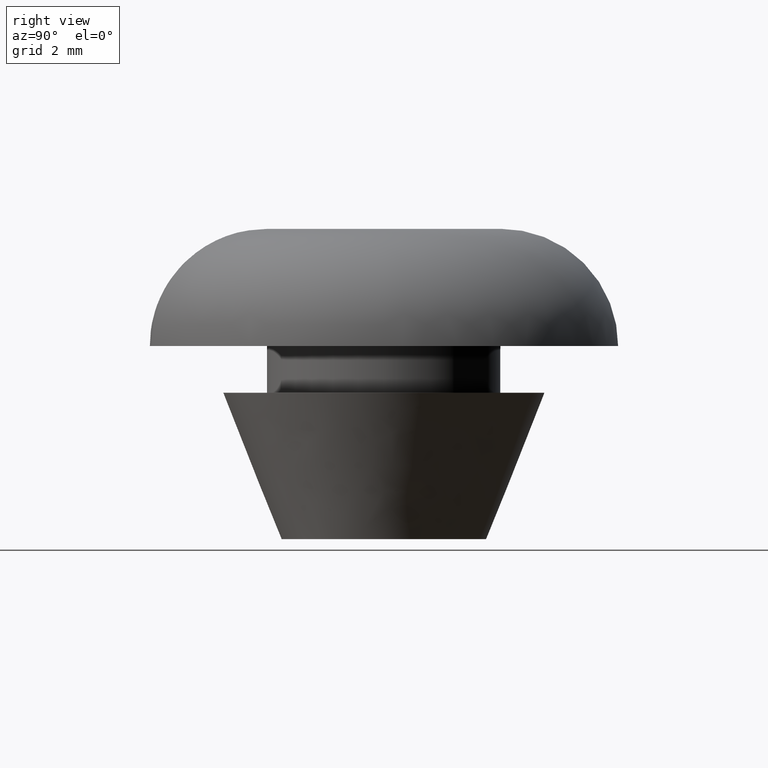
[diagram: clean part render]
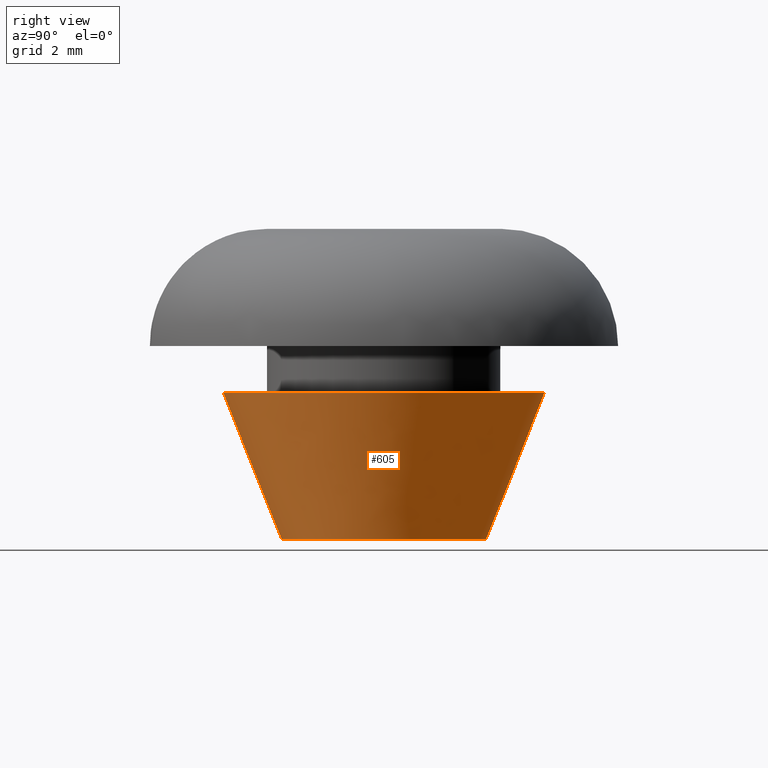
[diagram: same view with one face highlighted and labeled with its STEP entity id]
A machine part, right view. The second image highlights one B-rep face of the part: STEP entity #605.
In plain terms, the highlighted face is a freeform B-spline surface patch.
Its self-contained STEP definition (entity closure, byte-faithful):
#440=CARTESIAN_POINT('',(-0.274600980489155,3.489208997300468,-0.000005312372791));
#441=VERTEX_POINT('',#440);
#455=CARTESIAN_POINT('',(0.274600980489155,-3.489208997300468,-0.000005312372791));
#456=VERTEX_POINT('',#455);
#472=CARTESIAN_POINT('',(0.431523188758528,-5.483044809921816,4.999998329556744));
#473=VERTEX_POINT('',#472);
#474=CARTESIAN_POINT('',(0.274600980489155,-3.489208997300468,-0.000005312372791));
#475=CARTESIAN_POINT('',(0.431523188758528,-5.483044809921816,4.999998329556744));
#476=QUASI_UNIFORM_CURVE('',1,(#474,#475),.UNSPECIFIED.,.F.,.U.);
#477=EDGE_CURVE('',#456,#473,#476,.T.);
#496=CARTESIAN_POINT('',(-0.431523188758529,5.483044809921818,4.999998329556744));
#497=VERTEX_POINT('',#496);
#511=CARTESIAN_POINT('',(-0.274600980489155,3.489208997300468,-0.000005312372791));
#512=CARTESIAN_POINT('',(-0.431523188758529,5.483044809921818,4.999998329556744));
#513=QUASI_UNIFORM_CURVE('',1,(#511,#512),.UNSPECIFIED.,.F.,.U.);
#514=EDGE_CURVE('',#441,#497,#513,.T.);
#519=CARTESIAN_POINT('',(0.222321621183587,-3.443170993714580,-0.125000000000000));
#520=CARTESIAN_POINT('',(0.246432124522104,-3.441273455949439,-0.125000000000000));
#521=CARTESIAN_POINT('',(3.710048681640357,-3.168680921118223,-0.125000000000000));
#522=CARTESIAN_POINT('',(3.439364801379290,0.270683880261067,-0.125000000000000));
#523=CARTESIAN_POINT('',(3.168680921118223,3.710048681640357,-0.125000000000000));
#524=CARTESIAN_POINT('',(-0.294932292382487,3.437456409957549,-0.125000000000000));
#525=CARTESIAN_POINT('',(-0.319039490993339,3.435559132280112,-0.125000000000000));
#526=CARTESIAN_POINT('',(0.357728376694316,-5.540261733002340,5.128125000000000));
#527=CARTESIAN_POINT('',(0.396523574276328,-5.537208484736038,5.128124999999999));
#528=CARTESIAN_POINT('',(5.969683404045228,-5.098591293726822,5.128125000000001));
#529=CARTESIAN_POINT('',(5.534137348886025,0.435546055159203,5.128125000000001));
#530=CARTESIAN_POINT('',(5.098591293726822,5.969683404045228,5.128125000000001));
#531=CARTESIAN_POINT('',(-0.474563155967617,5.531066636457058,5.128125000000003));
#532=CARTESIAN_POINT('',(-0.513353036051238,5.528013806686950,5.128124999999999));
#540=(BOUNDED_SURFACE()B_SPLINE_SURFACE(2,1,((#519,#526),(#520,#527),(#521,#528),(#522,#529),(#523,#530),(#524,#531),(#525,#532)),.UNSPECIFIED.,.F.,.F.,.U.)B_SPLINE_SURFACE_WITH_KNOTS((3,1,2,1,3),(2,2),(0.0,0.091986763705193,9.289598916199767,18.487211068694339,18.579185112933470),(0.0,5.657865924875689),.UNSPECIFIED.)GEOMETRIC_REPRESENTATION_ITEM()RATIONAL_B_SPLINE_SURFACE(((1.005858542165760,1.005858542165760),(1.002929271082880,1.002929271082880),(0.707106781186548,0.707106781186548),(1.0,1.0),(0.707106781186548,0.707106781186548),(1.002928866038038,1.002928866038038),(1.005857732076077,1.005857732076077)))REPRESENTATION_ITEM('')SURFACE());
#541=CARTESIAN_POINT('',(3.500000000000000,0.0,0.0));
#542=VERTEX_POINT('',#541);
#543=CARTESIAN_POINT('',(-0.274600980489155,3.489208997300468,-0.000005312372791));
#544=CARTESIAN_POINT('',(-0.137512353718484,3.499997920065322,-0.000005215903538));
#545=CARTESIAN_POINT('',(0.000000160415872,3.499997961680607,-0.000005111543859));
#546=CARTESIAN_POINT('',(3.500000077056623,3.499999020882365,-0.000002455357463));
#547=CARTESIAN_POINT('',(3.500000000000000,0.0,0.0));
#555=(BOUNDED_CURVE()B_SPLINE_CURVE(2,(#543,#544,#545,#546,#547),.UNSPECIFIED.,.F.,.U.)B_SPLINE_CURVE_WITH_KNOTS((3,2,3),(0.236331580075702,0.250000000000000,0.500000000000000),.UNSPECIFIED.)CURVE()GEOMETRIC_REPRESENTATION_ITEM()RATIONAL_B_SPLINE_CURVE((0.969723939348634,0.983986449969114,1.0,0.707106781186547,1.0))REPRESENTATION_ITEM(''));
#556=EDGE_CURVE('',#441,#542,#555,.T.);
#557=ORIENTED_EDGE('',*,*,#556,.F.);
#558=ORIENTED_EDGE('',*,*,#514,.T.);
#559=CARTESIAN_POINT('',(5.500000000000000,0.0,5.0));
#560=VERTEX_POINT('',#559);
#561=CARTESIAN_POINT('',(-0.431523188758529,5.483044809921819,4.999998329556744));
#562=CARTESIAN_POINT('',(-0.216094640267148,5.499999345978612,4.999998359891378));
#563=CARTESIAN_POINT('',(0.000000050442510,5.499999359064479,4.999998392707188));
#564=CARTESIAN_POINT('',(5.500000024230313,5.499999692123400,4.999999227928816));
#565=CARTESIAN_POINT('',(5.500000000000000,0.0,5.0));
#573=(BOUNDED_CURVE()B_SPLINE_CURVE(2,(#561,#562,#563,#564,#565),.UNSPECIFIED.,.F.,.U.)B_SPLINE_CURVE_WITH_KNOTS((3,2,3),(0.236331356449855,0.250000000000000,0.500000000000000),.UNSPECIFIED.)CURVE()GEOMETRIC_REPRESENTATION_ITEM()RATIONAL_B_SPLINE_CURVE((0.969723472657849,0.983986187975137,1.0,0.707106781186548,1.0))REPRESENTATION_ITEM(''));
#574=EDGE_CURVE('',#497,#560,#573,.T.);
#575=ORIENTED_EDGE('',*,*,#574,.T.);
#576=CARTESIAN_POINT('',(5.500000000000000,0.0,5.0));
#577=CARTESIAN_POINT('',(5.499999973787802,-5.084149031616582,4.999999164778372));
#578=CARTESIAN_POINT('',(0.431523188758528,-5.483044809921816,4.999998329556744));
#586=(BOUNDED_CURVE()B_SPLINE_CURVE(2,(#576,#577,#578),.UNSPECIFIED.,.F.,.U.)B_SPLINE_CURVE_WITH_KNOTS((3,3),(0.500000000000000,0.736331356449855),.UNSPECIFIED.)CURVE()GEOMETRIC_REPRESENTATION_ITEM()RATIONAL_B_SPLINE_CURVE((1.0,0.723120593211411,0.969723472657849))REPRESENTATION_ITEM(''));
#587=EDGE_CURVE('',#560,#473,#586,.T.);
#588=ORIENTED_EDGE('',*,*,#587,.T.);
#589=ORIENTED_EDGE('',*,*,#477,.F.);
#590=CARTESIAN_POINT('',(3.500000000000000,0.0,0.0));
#591=CARTESIAN_POINT('',(3.499999916640751,-3.235370951957147,-0.000002656186396));
#592=CARTESIAN_POINT('',(0.274600980489156,-3.489208997300468,-0.000005312372791));
#600=(BOUNDED_CURVE()B_SPLINE_CURVE(2,(#590,#591,#592),.UNSPECIFIED.,.F.,.U.)B_SPLINE_CURVE_WITH_KNOTS((3,3),(0.500000000000000,0.736331580075702),.UNSPECIFIED.)CURVE()GEOMETRIC_REPRESENTATION_ITEM()RATIONAL_B_SPLINE_CURVE((1.0,0.723120331217434,0.969723939348634))REPRESENTATION_ITEM(''));
#601=EDGE_CURVE('',#542,#456,#600,.T.);
#602=ORIENTED_EDGE('',*,*,#601,.F.);
#603=EDGE_LOOP('',(#557,#558,#575,#588,#589,#602));
#604=FACE_OUTER_BOUND('',#603,.T.);
#605=ADVANCED_FACE('',(#604),#540,.T.);